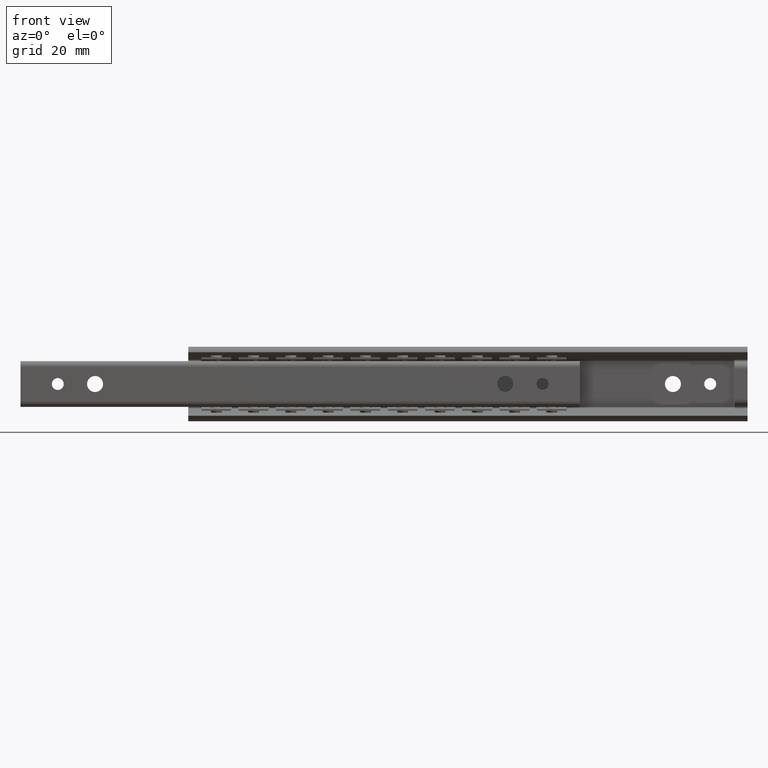
[diagram: clean part render]
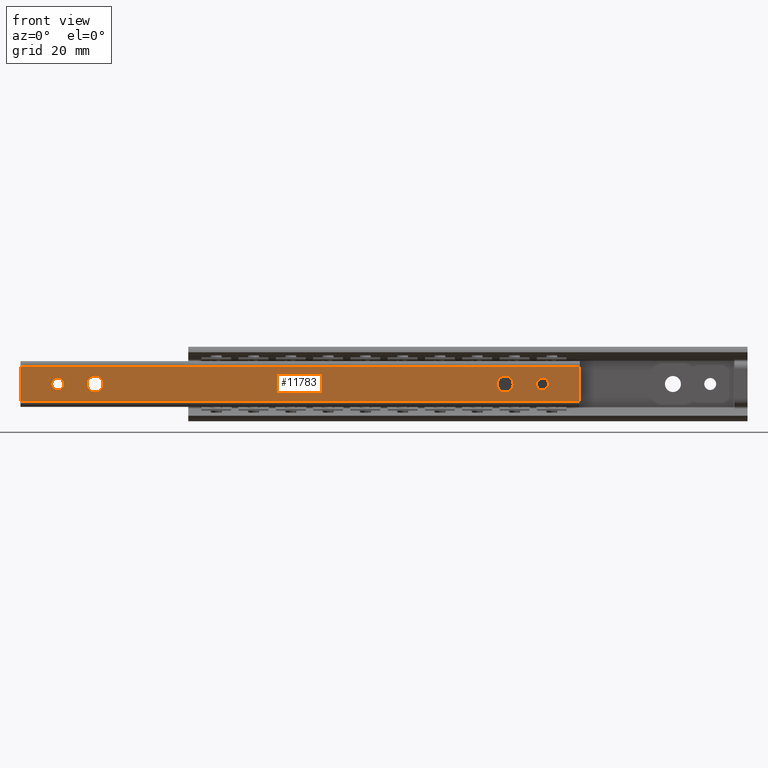
[diagram: same view with one face highlighted and labeled with its STEP entity id]
A machine part, front view. The second image highlights one B-rep face of the part: STEP entity #11783.
In plain terms, the highlighted face is a freeform B-spline surface patch.
Its self-contained STEP definition (entity closure, byte-faithful):
#10524=CARTESIAN_POINT('',(-36.588815242086199,-8.0,0.188854776255672));
#10525=VERTEX_POINT('',#10524);
#10531=CARTESIAN_POINT('',(-35.0,-8.0,-1.600000000000000));
#10532=VERTEX_POINT('',#10531);
#10533=CARTESIAN_POINT('',(-36.588815242086199,-8.0,0.188854776255672));
#10534=CARTESIAN_POINT('',(-36.600000000000001,-8.0,0.094758592256423));
#10535=CARTESIAN_POINT('',(-36.600000000000001,-8.0,0.0));
#10536=CARTESIAN_POINT('',(-36.600000000000001,-8.0,-1.600000000000000));
#10537=CARTESIAN_POINT('',(-35.0,-8.0,-1.600000000000000));
#10545=(BOUNDED_CURVE()B_SPLINE_CURVE(2,(#10533,#10534,#10535,#10536,#10537),.UNSPECIFIED.,.F.,.U.)B_SPLINE_CURVE_WITH_KNOTS((3,2,3),(0.229562473344418,0.250000000000000,0.500000000000000),.UNSPECIFIED.)CURVE()GEOMETRIC_REPRESENTATION_ITEM()RATIONAL_B_SPLINE_CURVE((0.956026753852275,0.976055948133043,1.0,0.707106781186548,1.0))REPRESENTATION_ITEM(''));
#10546=EDGE_CURVE('',#10525,#10532,#10545,.T.);
#10548=CARTESIAN_POINT('',(-33.402984322714801,-8.0,-0.097677666358625));
#10549=VERTEX_POINT('',#10548);
#10550=CARTESIAN_POINT('',(-35.0,-8.0,-1.600000000000000));
#10551=CARTESIAN_POINT('',(-33.494870298810483,-8.0,-1.600000000000000));
#10552=CARTESIAN_POINT('',(-33.402984322714794,-8.000000000000002,-0.097677666358625));
#10560=(BOUNDED_CURVE()B_SPLINE_CURVE(2,(#10550,#10551,#10552),.UNSPECIFIED.,.F.,.U.)B_SPLINE_CURVE_WITH_KNOTS((3,3),(0.500000000000000,0.739332961571483),.UNSPECIFIED.)CURVE()GEOMETRIC_REPRESENTATION_ITEM()RATIONAL_B_SPLINE_CURVE((1.0,0.719603994068688,0.976072040236225))REPRESENTATION_ITEM(''));
#10561=EDGE_CURVE('',#10532,#10549,#10560,.T.);
#10635=CARTESIAN_POINT('',(-35.0,-8.0,1.600000000000000));
#10636=VERTEX_POINT('',#10635);
#10637=CARTESIAN_POINT('',(-33.402984322714794,-8.000000000000002,-0.097677666358625));
#10638=CARTESIAN_POINT('',(-33.400000000000006,-8.0,-0.048884424389296));
#10639=CARTESIAN_POINT('',(-33.400000000000013,-8.0,0.0));
#10640=CARTESIAN_POINT('',(-33.400000000000006,-8.0,1.600000000000000));
#10641=CARTESIAN_POINT('',(-35.0,-8.0,1.600000000000000));
#10649=(BOUNDED_CURVE()B_SPLINE_CURVE(2,(#10637,#10638,#10639,#10640,#10641),.UNSPECIFIED.,.F.,.U.)B_SPLINE_CURVE_WITH_KNOTS((3,2,3),(0.739332961571483,0.750000000000000,1.0),.UNSPECIFIED.)CURVE()GEOMETRIC_REPRESENTATION_ITEM()RATIONAL_B_SPLINE_CURVE((0.976072040236225,0.987502787117860,1.0,0.707106781186548,1.0))REPRESENTATION_ITEM(''));
#10650=EDGE_CURVE('',#10549,#10636,#10649,.T.);
#10652=CARTESIAN_POINT('',(-35.0,-8.0,1.600000000000000));
#10653=CARTESIAN_POINT('',(-36.421079240072288,-8.0,1.600000000000000));
#10654=CARTESIAN_POINT('',(-36.588815242086206,-8.0,0.188854776255672));
#10662=(BOUNDED_CURVE()B_SPLINE_CURVE(2,(#10652,#10653,#10654),.UNSPECIFIED.,.F.,.U.)B_SPLINE_CURVE_WITH_KNOTS((3,3),(0.0,0.229562473344418),.UNSPECIFIED.)CURVE()GEOMETRIC_REPRESENTATION_ITEM()RATIONAL_B_SPLINE_CURVE((1.0,0.731050833053504,0.956026753852275))REPRESENTATION_ITEM(''));
#10663=EDGE_CURVE('',#10636,#10525,#10662,.T.);
#10710=CARTESIAN_POINT('',(-27.134970481558732,-8.0,0.253773605548098));
#10711=VERTEX_POINT('',#10710);
#10717=CARTESIAN_POINT('',(-25.0,-8.0,-2.150000000000000));
#10718=VERTEX_POINT('',#10717);
#10719=CARTESIAN_POINT('',(-27.134970481558735,-8.0,0.253773605548098));
#10720=CARTESIAN_POINT('',(-27.150000000000006,-8.0,0.127331858298627));
#10721=CARTESIAN_POINT('',(-27.149999999999999,-8.0,0.0));
#10722=CARTESIAN_POINT('',(-27.150000000000006,-8.0,-2.150000000000000));
#10723=CARTESIAN_POINT('',(-25.0,-8.0,-2.150000000000000));
#10731=(BOUNDED_CURVE()B_SPLINE_CURVE(2,(#10719,#10720,#10721,#10722,#10723),.UNSPECIFIED.,.F.,.U.)B_SPLINE_CURVE_WITH_KNOTS((3,2,3),(0.229562473351615,0.250000000000000,0.500000000000000),.UNSPECIFIED.)CURVE()GEOMETRIC_REPRESENTATION_ITEM()RATIONAL_B_SPLINE_CURVE((0.956026753866382,0.976055948141475,1.0,0.707106781186547,1.0))REPRESENTATION_ITEM(''));
#10732=EDGE_CURVE('',#10711,#10718,#10731,.T.);
#10734=CARTESIAN_POINT('',(-22.854010183504680,-8.0,-0.131254361826134));
#10735=VERTEX_POINT('',#10734);
#10736=CARTESIAN_POINT('',(-25.0,-8.0,-2.150000000000000));
#10737=CARTESIAN_POINT('',(-22.977481959601413,-8.0,-2.150000000000000));
#10738=CARTESIAN_POINT('',(-22.854010183504680,-8.000000000000002,-0.131254361826134));
#10746=(BOUNDED_CURVE()B_SPLINE_CURVE(2,(#10736,#10737,#10738),.UNSPECIFIED.,.F.,.U.)B_SPLINE_CURVE_WITH_KNOTS((3,3),(0.500000000000000,0.739332961948302),.UNSPECIFIED.)CURVE()GEOMETRIC_REPRESENTATION_ITEM()RATIONAL_B_SPLINE_CURVE((1.0,0.719603993627217,0.976072041043819))REPRESENTATION_ITEM(''));
#10747=EDGE_CURVE('',#10718,#10735,#10746,.T.);
#10821=CARTESIAN_POINT('',(-25.0,-8.0,2.150000000000000));
#10822=VERTEX_POINT('',#10821);
#10823=CARTESIAN_POINT('',(-22.854010183504684,-8.0,-0.131254361826134));
#10824=CARTESIAN_POINT('',(-22.850000000000009,-8.000000000000002,-0.065688442923278));
#10825=CARTESIAN_POINT('',(-22.850000000000001,-8.0,0.0));
#10826=CARTESIAN_POINT('',(-22.850000000000001,-8.0,2.150000000000000));
#10827=CARTESIAN_POINT('',(-25.0,-8.0,2.150000000000000));
#10835=(BOUNDED_CURVE()B_SPLINE_CURVE(2,(#10823,#10824,#10825,#10826,#10827),.UNSPECIFIED.,.F.,.U.)B_SPLINE_CURVE_WITH_KNOTS((3,2,3),(0.739332961948301,0.750000000000000,1.0),.UNSPECIFIED.)CURVE()GEOMETRIC_REPRESENTATION_ITEM()RATIONAL_B_SPLINE_CURVE((0.976072041043817,0.987502787559329,1.0,0.707106781186547,1.0))REPRESENTATION_ITEM(''));
#10836=EDGE_CURVE('',#10735,#10822,#10835,.T.);
#10838=CARTESIAN_POINT('',(-25.0,-8.0,2.150000000000000));
#10839=CARTESIAN_POINT('',(-26.909575228929018,-8.0,2.150000000000000));
#10840=CARTESIAN_POINT('',(-27.134970481558739,-8.000000000000002,0.253773605548098));
#10848=(BOUNDED_CURVE()B_SPLINE_CURVE(2,(#10838,#10839,#10840),.UNSPECIFIED.,.F.,.U.)B_SPLINE_CURVE_WITH_KNOTS((3,3),(0.0,0.229562473351615),.UNSPECIFIED.)CURVE()GEOMETRIC_REPRESENTATION_ITEM()RATIONAL_B_SPLINE_CURVE((1.0,0.731050833045072,0.956026753866382))REPRESENTATION_ITEM(''));
#10849=EDGE_CURVE('',#10822,#10711,#10848,.T.);
#10896=CARTESIAN_POINT('',(82.865029518441276,-8.0,0.253773605548096));
#10897=VERTEX_POINT('',#10896);
#10903=CARTESIAN_POINT('',(85.0,-8.0,-2.150000000000000));
#10904=VERTEX_POINT('',#10903);
#10905=CARTESIAN_POINT('',(82.865029518441276,-8.0,0.253773605548096));
#10906=CARTESIAN_POINT('',(82.849999999999994,-8.000000000000002,0.127331858298626));
#10907=CARTESIAN_POINT('',(82.850000000000009,-8.0,0.0));
#10908=CARTESIAN_POINT('',(82.850000000000009,-8.0,-2.150000000000000));
#10909=CARTESIAN_POINT('',(85.0,-8.0,-2.150000000000000));
#10917=(BOUNDED_CURVE()B_SPLINE_CURVE(2,(#10905,#10906,#10907,#10908,#10909),.UNSPECIFIED.,.F.,.U.)B_SPLINE_CURVE_WITH_KNOTS((3,2,3),(0.229562473351615,0.250000000000000,0.500000000000000),.UNSPECIFIED.)CURVE()GEOMETRIC_REPRESENTATION_ITEM()RATIONAL_B_SPLINE_CURVE((0.956026753866382,0.976055948141476,1.0,0.707106781186547,1.0))REPRESENTATION_ITEM(''));
#10918=EDGE_CURVE('',#10897,#10904,#10917,.T.);
#10920=CARTESIAN_POINT('',(87.145989816495316,-8.0,-0.131254361826134));
#10921=VERTEX_POINT('',#10920);
#10922=CARTESIAN_POINT('',(85.0,-8.0,-2.150000000000000));
#10923=CARTESIAN_POINT('',(87.022518040398595,-8.0,-2.150000000000000));
#10924=CARTESIAN_POINT('',(87.145989816495316,-8.000000000000002,-0.131254361826134));
#10932=(BOUNDED_CURVE()B_SPLINE_CURVE(2,(#10922,#10923,#10924),.UNSPECIFIED.,.F.,.U.)B_SPLINE_CURVE_WITH_KNOTS((3,3),(0.500000000000000,0.739332961948302),.UNSPECIFIED.)CURVE()GEOMETRIC_REPRESENTATION_ITEM()RATIONAL_B_SPLINE_CURVE((1.0,0.719603993627217,0.976072041043819))REPRESENTATION_ITEM(''));
#10933=EDGE_CURVE('',#10904,#10921,#10932,.T.);
#11007=CARTESIAN_POINT('',(85.0,-8.0,2.150000000000000));
#11008=VERTEX_POINT('',#11007);
#11009=CARTESIAN_POINT('',(87.145989816495316,-8.0,-0.131254361826134));
#11010=CARTESIAN_POINT('',(87.150000000000006,-8.000000000000002,-0.065688442923278));
#11011=CARTESIAN_POINT('',(87.150000000000006,-8.0,0.0));
#11012=CARTESIAN_POINT('',(87.149999999999991,-8.0,2.150000000000000));
#11013=CARTESIAN_POINT('',(85.0,-8.0,2.150000000000000));
#11021=(BOUNDED_CURVE()B_SPLINE_CURVE(2,(#11009,#11010,#11011,#11012,#11013),.UNSPECIFIED.,.F.,.U.)B_SPLINE_CURVE_WITH_KNOTS((3,2,3),(0.739332961948301,0.750000000000000,1.0),.UNSPECIFIED.)CURVE()GEOMETRIC_REPRESENTATION_ITEM()RATIONAL_B_SPLINE_CURVE((0.976072041043817,0.987502787559329,1.0,0.707106781186547,1.0))REPRESENTATION_ITEM(''));
#11022=EDGE_CURVE('',#10921,#11008,#11021,.T.);
#11024=CARTESIAN_POINT('',(85.0,-8.0,2.150000000000000));
#11025=CARTESIAN_POINT('',(83.090424771070985,-8.0,2.150000000000001));
#11026=CARTESIAN_POINT('',(82.865029518441276,-8.0,0.253773605548096));
#11034=(BOUNDED_CURVE()B_SPLINE_CURVE(2,(#11024,#11025,#11026),.UNSPECIFIED.,.F.,.U.)B_SPLINE_CURVE_WITH_KNOTS((3,3),(0.0,0.229562473351615),.UNSPECIFIED.)CURVE()GEOMETRIC_REPRESENTATION_ITEM()RATIONAL_B_SPLINE_CURVE((1.0,0.731050833045072,0.956026753866382))REPRESENTATION_ITEM(''));
#11035=EDGE_CURVE('',#11008,#10897,#11034,.T.);
#11082=CARTESIAN_POINT('',(93.411184757913787,-8.0,0.188854776255671));
#11083=VERTEX_POINT('',#11082);
#11089=CARTESIAN_POINT('',(95.0,-8.0,-1.600000000000000));
#11090=VERTEX_POINT('',#11089);
#11091=CARTESIAN_POINT('',(93.411184757913787,-8.0,0.188854776255671));
#11092=CARTESIAN_POINT('',(93.399999999999991,-8.000000000000002,0.094758592256423));
#11093=CARTESIAN_POINT('',(93.399999999999991,-8.0,0.0));
#11094=CARTESIAN_POINT('',(93.399999999999977,-8.0,-1.600000000000000));
#11095=CARTESIAN_POINT('',(95.0,-8.0,-1.600000000000000));
#11103=(BOUNDED_CURVE()B_SPLINE_CURVE(2,(#11091,#11092,#11093,#11094,#11095),.UNSPECIFIED.,.F.,.U.)B_SPLINE_CURVE_WITH_KNOTS((3,2,3),(0.229562473344418,0.250000000000000,0.500000000000000),.UNSPECIFIED.)CURVE()GEOMETRIC_REPRESENTATION_ITEM()RATIONAL_B_SPLINE_CURVE((0.956026753852275,0.976055948133043,1.0,0.707106781186548,1.0))REPRESENTATION_ITEM(''));
#11104=EDGE_CURVE('',#11083,#11090,#11103,.T.);
#11106=CARTESIAN_POINT('',(96.597015677285214,-8.0,-0.097677666358625));
#11107=VERTEX_POINT('',#11106);
#11108=CARTESIAN_POINT('',(95.0,-8.0,-1.600000000000000));
#11109=CARTESIAN_POINT('',(96.505129701189560,-8.0,-1.600000000000000));
#11110=CARTESIAN_POINT('',(96.597015677285214,-8.000000000000002,-0.097677666358625));
#11118=(BOUNDED_CURVE()B_SPLINE_CURVE(2,(#11108,#11109,#11110),.UNSPECIFIED.,.F.,.U.)B_SPLINE_CURVE_WITH_KNOTS((3,3),(0.500000000000000,0.739332961571483),.UNSPECIFIED.)CURVE()GEOMETRIC_REPRESENTATION_ITEM()RATIONAL_B_SPLINE_CURVE((1.0,0.719603994068688,0.976072040236225))REPRESENTATION_ITEM(''));
#11119=EDGE_CURVE('',#11090,#11107,#11118,.T.);
#11193=CARTESIAN_POINT('',(95.0,-8.0,1.600000000000000));
#11194=VERTEX_POINT('',#11193);
#11195=CARTESIAN_POINT('',(96.597015677285214,-8.0,-0.097677666358625));
#11196=CARTESIAN_POINT('',(96.599999999999994,-8.0,-0.048884424389296));
#11197=CARTESIAN_POINT('',(96.600000000000009,-8.0,0.0));
#11198=CARTESIAN_POINT('',(96.600000000000009,-8.0,1.600000000000000));
#11199=CARTESIAN_POINT('',(95.0,-8.0,1.600000000000000));
#11207=(BOUNDED_CURVE()B_SPLINE_CURVE(2,(#11195,#11196,#11197,#11198,#11199),.UNSPECIFIED.,.F.,.U.)B_SPLINE_CURVE_WITH_KNOTS((3,2,3),(0.739332961571483,0.750000000000000,1.0),.UNSPECIFIED.)CURVE()GEOMETRIC_REPRESENTATION_ITEM()RATIONAL_B_SPLINE_CURVE((0.976072040236225,0.987502787117860,1.0,0.707106781186548,1.0))REPRESENTATION_ITEM(''));
#11208=EDGE_CURVE('',#11107,#11194,#11207,.T.);
#11210=CARTESIAN_POINT('',(95.0,-8.0,1.600000000000000));
#11211=CARTESIAN_POINT('',(93.578920759927712,-8.0,1.600000000000000));
#11212=CARTESIAN_POINT('',(93.411184757913787,-8.0,0.188854776255671));
#11220=(BOUNDED_CURVE()B_SPLINE_CURVE(2,(#11210,#11211,#11212),.UNSPECIFIED.,.F.,.U.)B_SPLINE_CURVE_WITH_KNOTS((3,3),(0.0,0.229562473344418),.UNSPECIFIED.)CURVE()GEOMETRIC_REPRESENTATION_ITEM()RATIONAL_B_SPLINE_CURVE((1.0,0.731050833053504,0.956026753852275))REPRESENTATION_ITEM(''));
#11221=EDGE_CURVE('',#11194,#11083,#11220,.T.);
#11349=CARTESIAN_POINT('',(-45.0,-8.0,-4.641040000000000));
#11350=VERTEX_POINT('',#11349);
#11366=CARTESIAN_POINT('',(-45.0,-8.000000000000091,4.641039999999900));
#11367=VERTEX_POINT('',#11366);
#11368=CARTESIAN_POINT('',(-45.0,-8.0,-4.641040000000000));
#11369=CARTESIAN_POINT('',(-45.0,-8.000000000000091,4.641039999999900));
#11370=QUASI_UNIFORM_CURVE('',1,(#11368,#11369),.UNSPECIFIED.,.F.,.U.);
#11371=EDGE_CURVE('',#11350,#11367,#11370,.T.);
#11435=CARTESIAN_POINT('',(105.0,-8.0,4.641039999999910));
#11436=VERTEX_POINT('',#11435);
#11452=CARTESIAN_POINT('',(105.0,-8.000000000000091,-4.641040000000000));
#11453=VERTEX_POINT('',#11452);
#11454=CARTESIAN_POINT('',(105.0,-8.0,4.641039999999910));
#11455=CARTESIAN_POINT('',(105.0,-8.000000000000091,-4.641040000000000));
#11456=QUASI_UNIFORM_CURVE('',1,(#11454,#11455),.UNSPECIFIED.,.F.,.U.);
#11457=EDGE_CURVE('',#11436,#11453,#11456,.T.);
#11733=CARTESIAN_POINT('',(105.0,-8.000000000000091,-4.641040000000000));
#11734=CARTESIAN_POINT('',(-45.0,-8.0,-4.641040000000000));
#11735=QUASI_UNIFORM_CURVE('',1,(#11733,#11734),.UNSPECIFIED.,.F.,.U.);
#11736=EDGE_CURVE('',#11453,#11350,#11735,.T.);
#11744=CARTESIAN_POINT('',(-52.492499709270902,-8.000000000000091,-5.104679757713888));
#11745=CARTESIAN_POINT('',(-52.492499709270902,-8.000000000000091,5.104679425760749));
#11746=CARTESIAN_POINT('',(112.492503732584400,-8.000000000000091,-5.104679757713888));
#11747=CARTESIAN_POINT('',(112.492503732584400,-8.000000000000091,5.104679425760749));
#11748=B_SPLINE_SURFACE_WITH_KNOTS('',1,1,((#11744,#11746),(#11745,#11747)),.UNSPECIFIED.,.F.,.F.,.U.,(2,2),(2,2),(0.0,10.209359183474641),(0.0,164.985003441855300),.UNSPECIFIED.);
#11749=CARTESIAN_POINT('',(105.0,-8.0,4.641039999999910));
#11750=CARTESIAN_POINT('',(-45.0,-8.000000000000091,4.641039999999900));
#11751=QUASI_UNIFORM_CURVE('',1,(#11749,#11750),.UNSPECIFIED.,.F.,.U.);
#11752=EDGE_CURVE('',#11436,#11367,#11751,.T.);
#11753=ORIENTED_EDGE('',*,*,#11752,.T.);
#11754=ORIENTED_EDGE('',*,*,#11371,.F.);
#11755=ORIENTED_EDGE('',*,*,#11736,.F.);
#11756=ORIENTED_EDGE('',*,*,#11457,.F.);
#11757=EDGE_LOOP('',(#11753,#11754,#11755,#11756));
#11758=FACE_OUTER_BOUND('',#11757,.T.);
#11759=ORIENTED_EDGE('',*,*,#11119,.F.);
#11760=ORIENTED_EDGE('',*,*,#11104,.F.);
#11761=ORIENTED_EDGE('',*,*,#11221,.F.);
#11762=ORIENTED_EDGE('',*,*,#11208,.F.);
#11763=EDGE_LOOP('',(#11759,#11760,#11761,#11762));
#11764=FACE_BOUND('',#11763,.T.);
#11765=ORIENTED_EDGE('',*,*,#10933,.F.);
#11766=ORIENTED_EDGE('',*,*,#10918,.F.);
#11767=ORIENTED_EDGE('',*,*,#11035,.F.);
#11768=ORIENTED_EDGE('',*,*,#11022,.F.);
#11769=EDGE_LOOP('',(#11765,#11766,#11767,#11768));
#11770=FACE_BOUND('',#11769,.T.);
#11771=ORIENTED_EDGE('',*,*,#10747,.F.);
#11772=ORIENTED_EDGE('',*,*,#10732,.F.);
#11773=ORIENTED_EDGE('',*,*,#10849,.F.);
#11774=ORIENTED_EDGE('',*,*,#10836,.F.);
#11775=EDGE_LOOP('',(#11771,#11772,#11773,#11774));
#11776=FACE_BOUND('',#11775,.T.);
#11777=ORIENTED_EDGE('',*,*,#10561,.F.);
#11778=ORIENTED_EDGE('',*,*,#10546,.F.);
#11779=ORIENTED_EDGE('',*,*,#10663,.F.);
#11780=ORIENTED_EDGE('',*,*,#10650,.F.);
#11781=EDGE_LOOP('',(#11777,#11778,#11779,#11780));
#11782=FACE_BOUND('',#11781,.T.);
#11783=ADVANCED_FACE('',(#11758,#11764,#11770,#11776,#11782),#11748,.F.);